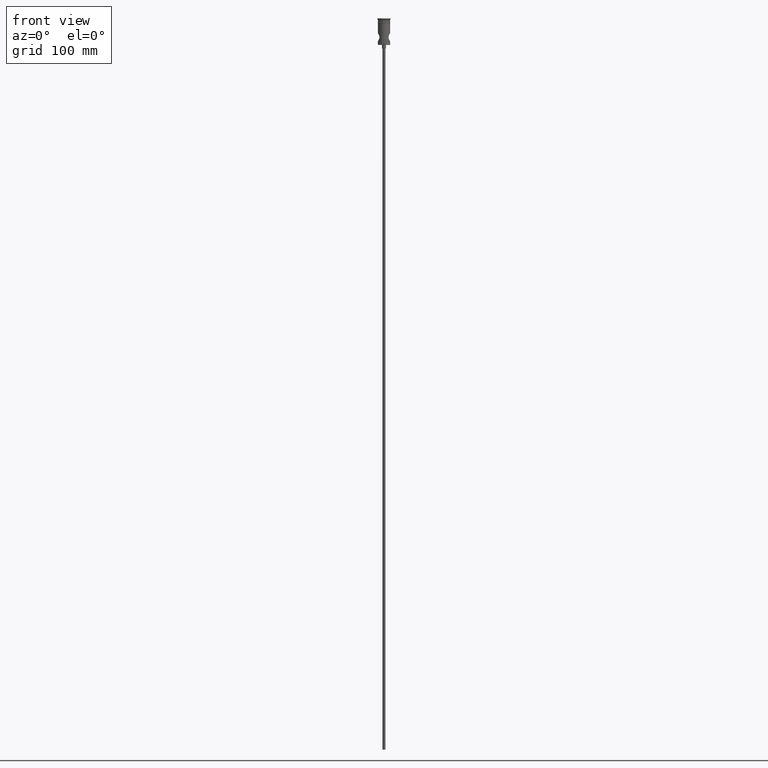
[diagram: clean part render]
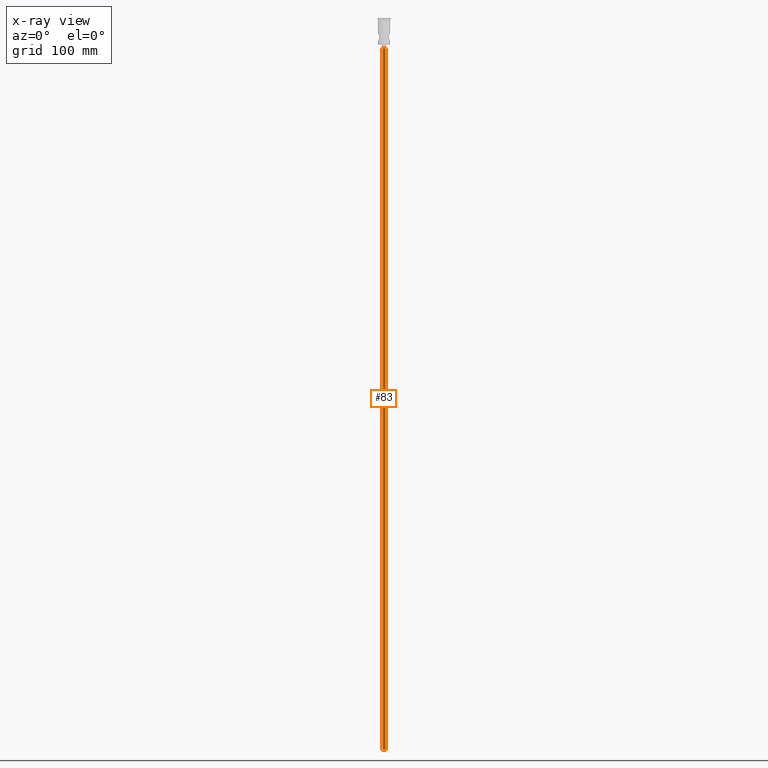
[diagram: x-ray — body ghosted, one internal face saturated and labeled with its STEP entity id]
A machine part, front view, then the same camera in x-ray: the body is ghosted and one INTERNAL B-rep face — a face not visible from any outside direction — is saturated and labeled: STEP entity #83.
In plain terms, the highlighted cylindrical surface (edge-blend (fillet) strip) has radius 1.25 mm, axis along (-0, -0, 1).
Its self-contained STEP definition (entity closure, byte-faithful):
#21 = DIRECTION ( 'NONE',  ( 1.000000000000000000, 0.000000000000000000, 0.000000000000000000 ) ) ;
#77 = CARTESIAN_POINT ( 'NONE',  ( 1.250000000000000000, 0.000000000000000000, -25.50000000000000000 ) ) ;
#83 = ADVANCED_FACE ( 'NONE', ( #664 ), #686, .T. ) ;
#98 = VERTEX_POINT ( 'NONE', #1355 ) ;
#117 = CIRCLE ( 'NONE', #1242, 1.250000000000000000 ) ;
#225 = DIRECTION ( 'NONE',  ( -0.000000000000000000, -0.000000000000000000, 1.000000000000000000 ) ) ;
#226 = EDGE_CURVE ( 'NONE', #98, #273, #256, .T. ) ;
#231 = CARTESIAN_POINT ( 'NONE',  ( -1.250000000000000000, 1.530808498934191571E-16, -622.4999999999998863 ) ) ;
#247 = CARTESIAN_POINT ( 'NONE',  ( 1.250000000000000000, 0.000000000000000000, -622.4999999999998863 ) ) ;
#256 = LINE ( 'NONE', #231, #924 ) ;
#273 = VERTEX_POINT ( 'NONE', #1212 ) ;
#483 = AXIS2_PLACEMENT_3D ( 'NONE', #682, #225, #21 ) ;
#485 = DIRECTION ( 'NONE',  ( 0.000000000000000000, 0.000000000000000000, -1.000000000000000000 ) ) ;
#523 = ORIENTED_EDGE ( 'NONE', *, *, #1360, .F. ) ;
#545 = ORIENTED_EDGE ( 'NONE', *, *, #1143, .T. ) ;
#580 = LINE ( 'NONE', #247, #969 ) ;
#644 = CIRCLE ( 'NONE', #1393, 1.250000000000000000 ) ;
#651 = CARTESIAN_POINT ( 'NONE',  ( 1.250000000000000000, 0.000000000000000000, -622.4999999999998863 ) ) ;
#664 = FACE_OUTER_BOUND ( 'NONE', #1019, .T. ) ;
#678 = DIRECTION ( 'NONE',  ( 0.000000000000000000, 0.000000000000000000, -1.000000000000000000 ) ) ;
#682 = CARTESIAN_POINT ( 'NONE',  ( 0.000000000000000000, 0.000000000000000000, -622.4999999999998863 ) ) ;
#686 = CYLINDRICAL_SURFACE ( 'NONE', #483, 1.250000000000000000 ) ;
#804 = DIRECTION ( 'NONE',  ( -1.000000000000000000, 0.000000000000000000, 0.000000000000000000 ) ) ;
#924 = VECTOR ( 'NONE', #1110, 1000.000000000000000 ) ;
#969 = VECTOR ( 'NONE', #1238, 1000.000000000000000 ) ;
#1019 = EDGE_LOOP ( 'NONE', ( #523, #1431, #545, #1323 ) ) ;
#1110 = DIRECTION ( 'NONE',  ( -0.000000000000000000, -0.000000000000000000, 1.000000000000000000 ) ) ;
#1143 = EDGE_CURVE ( 'NONE', #273, #1194, #644, .T. ) ;
#1171 = VERTEX_POINT ( 'NONE', #651 ) ;
#1194 = VERTEX_POINT ( 'NONE', #77 ) ;
#1212 = CARTESIAN_POINT ( 'NONE',  ( -1.250000000000000000, 1.530808498934191571E-16, -25.50000000000000000 ) ) ;
#1238 = DIRECTION ( 'NONE',  ( -0.000000000000000000, -0.000000000000000000, 1.000000000000000000 ) ) ;
#1242 = AXIS2_PLACEMENT_3D ( 'NONE', #1248, #678, #804 ) ;
#1248 = CARTESIAN_POINT ( 'NONE',  ( 0.000000000000000000, 0.000000000000000000, -622.4999999999998863 ) ) ;
#1262 = EDGE_CURVE ( 'NONE', #1171, #1194, #580, .T. ) ;
#1278 = CARTESIAN_POINT ( 'NONE',  ( 0.000000000000000000, 0.000000000000000000, -25.50000000000000000 ) ) ;
#1321 = DIRECTION ( 'NONE',  ( -1.000000000000000000, 0.000000000000000000, 0.000000000000000000 ) ) ;
#1323 = ORIENTED_EDGE ( 'NONE', *, *, #1262, .F. ) ;
#1355 = CARTESIAN_POINT ( 'NONE',  ( -1.250000000000000000, 1.530808498934191571E-16, -622.4999999999998863 ) ) ;
#1360 = EDGE_CURVE ( 'NONE', #98, #1171, #117, .T. ) ;
#1393 = AXIS2_PLACEMENT_3D ( 'NONE', #1278, #485, #1321 ) ;
#1431 = ORIENTED_EDGE ( 'NONE', *, *, #226, .T. ) ;